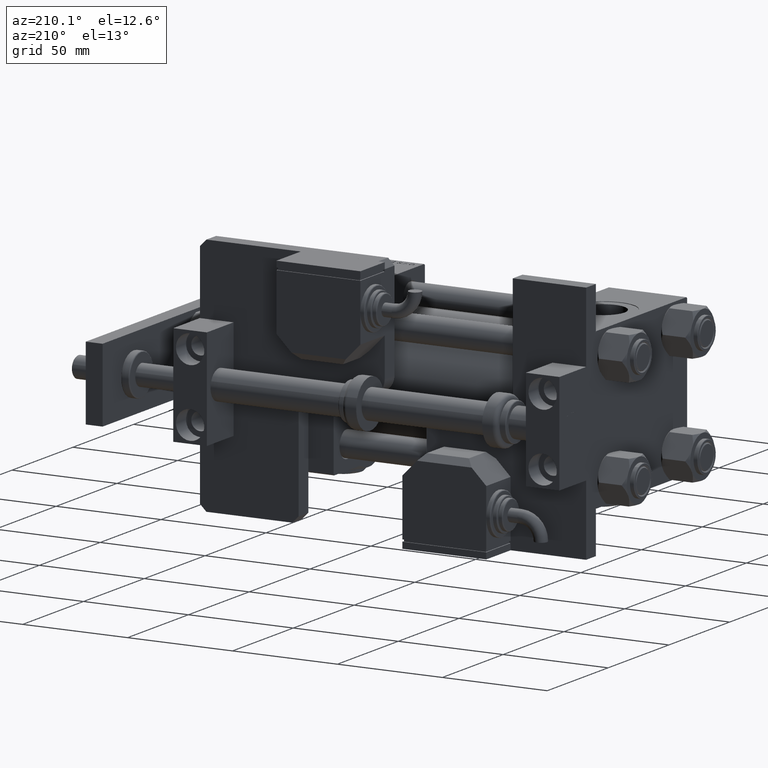
[diagram: clean part render]
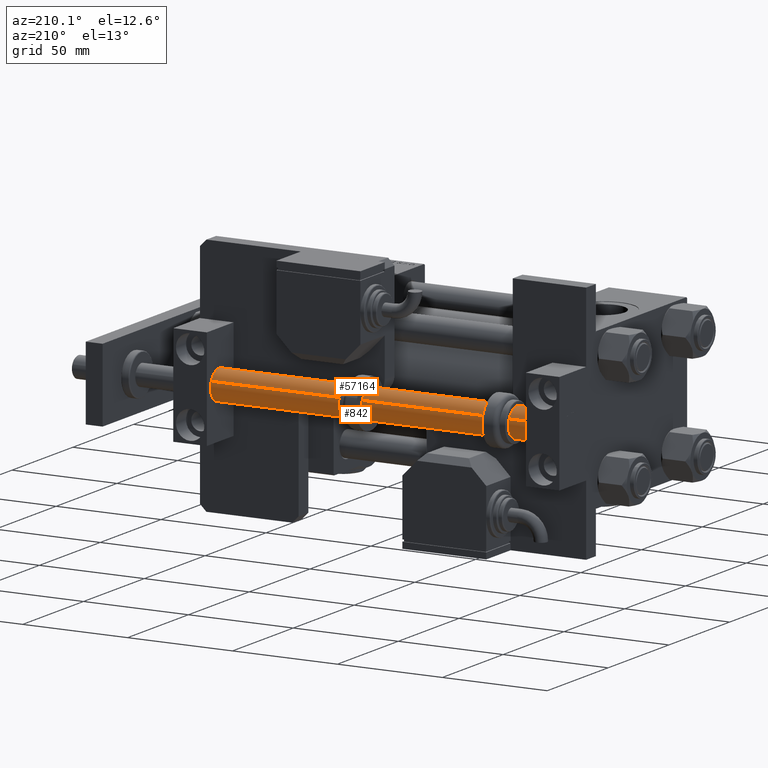
[diagram: same view with one multi-face feature highlighted, each face labeled with its STEP entity id]
A machine part, auxiliary view. The highlighted faces form ONE feature: a constant-radius fillet chain: 2 tangent blend faces with common blend radius 7 mm. The faces share edges in the B-rep.
Their STEP definitions:
[1] entity #57164 (Cylinder):
#938 = CARTESIAN_POINT ( 'NONE',  ( 0.000000000000000000, 0.000000000000000000, 184.0000000000000000 ) ) ;
#5582 = CIRCLE ( 'NONE', #23339, 7.000000000000000000 ) ;
#9578 = DIRECTION ( 'NONE',  ( -0.000000000000000000, -0.000000000000000000, 1.000000000000000000 ) ) ;
#10321 = CARTESIAN_POINT ( 'NONE',  ( -7.000000000000000000, 0.000000000000000000, 0.2999999999999392042 ) ) ;
#10739 = FACE_OUTER_BOUND ( 'NONE', #12941, .T. ) ;
#10918 = VERTEX_POINT ( 'NONE', #56005 ) ;
#11431 = CARTESIAN_POINT ( 'NONE',  ( -7.000000000000000000, 0.000000000000000000, 184.0000000000000000 ) ) ;
#12364 = ORIENTED_EDGE ( 'NONE', *, *, #29591, .F. ) ;
#12742 = ORIENTED_EDGE ( 'NONE', *, *, #40665, .F. ) ;
#12941 = EDGE_LOOP ( 'NONE', ( #12364, #12742, #22082, #34234 ) ) ;
#13673 = VERTEX_POINT ( 'NONE', #29426 ) ;
#18656 = CARTESIAN_POINT ( 'NONE',  ( 0.000000000000000000, 0.000000000000000000, 0.2999999999999392042 ) ) ;
#19238 = DIRECTION ( 'NONE',  ( 1.000000000000000000, 0.000000000000000000, 0.000000000000000000 ) ) ;
#19930 = LINE ( 'NONE', #11431, #57220 ) ;
#20694 = DIRECTION ( 'NONE',  ( -1.000000000000000000, 0.000000000000000000, 0.000000000000000000 ) ) ;
#21622 = AXIS2_PLACEMENT_3D ( 'NONE', #38872, #52626, #20694 ) ;
#22082 = ORIENTED_EDGE ( 'NONE', *, *, #29376, .T. ) ;
#23339 = AXIS2_PLACEMENT_3D ( 'NONE', #18656, #9578, #19238 ) ;
#24207 = CYLINDRICAL_SURFACE ( 'NONE', #21622, 7.000000000000000000 ) ;
#24473 = EDGE_CURVE ( 'NONE', #27055, #10918, #5582, .T. ) ;
#27055 = VERTEX_POINT ( 'NONE', #10321 ) ;
#27292 = DIRECTION ( 'NONE',  ( 1.000000000000000000, 0.000000000000000000, 0.000000000000000000 ) ) ;
#29376 = EDGE_CURVE ( 'NONE', #35163, #27055, #19930, .T. ) ;
#29426 = CARTESIAN_POINT ( 'NONE',  ( 7.000000000000000000, 8.572527594031473190E-16, 184.0000000000000000 ) ) ;
#29589 = DIRECTION ( 'NONE',  ( -0.000000000000000000, -0.000000000000000000, -1.000000000000000000 ) ) ;
#29591 = EDGE_CURVE ( 'NONE', #13673, #10918, #32445, .T. ) ;
#30457 = CIRCLE ( 'NONE', #51967, 7.000000000000000000 ) ;
#32445 = LINE ( 'NONE', #45666, #50555 ) ;
#34234 = ORIENTED_EDGE ( 'NONE', *, *, #24473, .T. ) ;
#35163 = VERTEX_POINT ( 'NONE', #47490 ) ;
#35235 = DIRECTION ( 'NONE',  ( 0.000000000000000000, 0.000000000000000000, 1.000000000000000000 ) ) ;
#38872 = CARTESIAN_POINT ( 'NONE',  ( 0.000000000000000000, 0.000000000000000000, 184.0000000000000000 ) ) ;
#40665 = EDGE_CURVE ( 'NONE', #35163, #13673, #30457, .T. ) ;
#45666 = CARTESIAN_POINT ( 'NONE',  ( 7.000000000000000000, 8.572527594031473190E-16, 184.0000000000000000 ) ) ;
#47490 = CARTESIAN_POINT ( 'NONE',  ( -7.000000000000000000, 0.000000000000000000, 184.0000000000000000 ) ) ;
#50555 = VECTOR ( 'NONE', #54450, 1000.000000000000000 ) ;
#51967 = AXIS2_PLACEMENT_3D ( 'NONE', #938, #35235, #27292 ) ;
#52626 = DIRECTION ( 'NONE',  ( -0.000000000000000000, -0.000000000000000000, -1.000000000000000000 ) ) ;
#54450 = DIRECTION ( 'NONE',  ( -0.000000000000000000, -0.000000000000000000, -1.000000000000000000 ) ) ;
#56005 = CARTESIAN_POINT ( 'NONE',  ( 7.000000000000000000, 8.572527594031473190E-16, 0.2999999999999392042 ) ) ;
#57164 = ADVANCED_FACE ( 'NONE', ( #10739 ), #24207, .T. ) ;
#57220 = VECTOR ( 'NONE', #29589, 1000.000000000000000 ) ;
[2] entity #842 (Cylinder):
#441 = FACE_OUTER_BOUND ( 'NONE', #33664, .T. ) ;
#842 = ADVANCED_FACE ( 'NONE', ( #441 ), #27087, .T. ) ;
#8135 = DIRECTION ( 'NONE',  ( -0.000000000000000000, -0.000000000000000000, 1.000000000000000000 ) ) ;
#8160 = AXIS2_PLACEMENT_3D ( 'NONE', #48302, #8135, #12826 ) ;
#8346 = DIRECTION ( 'NONE',  ( -0.000000000000000000, -0.000000000000000000, -1.000000000000000000 ) ) ;
#10035 = CIRCLE ( 'NONE', #8160, 7.000000000000000000 ) ;
#10321 = CARTESIAN_POINT ( 'NONE',  ( -7.000000000000000000, 0.000000000000000000, 0.2999999999999392042 ) ) ;
#10918 = VERTEX_POINT ( 'NONE', #56005 ) ;
#11431 = CARTESIAN_POINT ( 'NONE',  ( -7.000000000000000000, 0.000000000000000000, 184.0000000000000000 ) ) ;
#12826 = DIRECTION ( 'NONE',  ( 1.000000000000000000, 0.000000000000000000, 0.000000000000000000 ) ) ;
#13673 = VERTEX_POINT ( 'NONE', #29426 ) ;
#18138 = ORIENTED_EDGE ( 'NONE', *, *, #45371, .T. ) ;
#19930 = LINE ( 'NONE', #11431, #57220 ) ;
#20286 = ORIENTED_EDGE ( 'NONE', *, *, #29376, .F. ) ;
#24189 = EDGE_CURVE ( 'NONE', #13673, #35163, #35503, .T. ) ;
#27055 = VERTEX_POINT ( 'NONE', #10321 ) ;
#27087 = CYLINDRICAL_SURFACE ( 'NONE', #53936, 7.000000000000000000 ) ;
#28929 = AXIS2_PLACEMENT_3D ( 'NONE', #46067, #42560, #55727 ) ;
#29376 = EDGE_CURVE ( 'NONE', #35163, #27055, #19930, .T. ) ;
#29426 = CARTESIAN_POINT ( 'NONE',  ( 7.000000000000000000, 8.572527594031473190E-16, 184.0000000000000000 ) ) ;
#29526 = ORIENTED_EDGE ( 'NONE', *, *, #24189, .F. ) ;
#29589 = DIRECTION ( 'NONE',  ( -0.000000000000000000, -0.000000000000000000, -1.000000000000000000 ) ) ;
#29591 = EDGE_CURVE ( 'NONE', #13673, #10918, #32445, .T. ) ;
#32445 = LINE ( 'NONE', #45666, #50555 ) ;
#33664 = EDGE_LOOP ( 'NONE', ( #29526, #48879, #18138, #20286 ) ) ;
#35163 = VERTEX_POINT ( 'NONE', #47490 ) ;
#35503 = CIRCLE ( 'NONE', #28929, 7.000000000000000000 ) ;
#39735 = CARTESIAN_POINT ( 'NONE',  ( 0.000000000000000000, 0.000000000000000000, 184.0000000000000000 ) ) ;
#42560 = DIRECTION ( 'NONE',  ( 0.000000000000000000, 0.000000000000000000, 1.000000000000000000 ) ) ;
#44423 = DIRECTION ( 'NONE',  ( -1.000000000000000000, 0.000000000000000000, 0.000000000000000000 ) ) ;
#45371 = EDGE_CURVE ( 'NONE', #10918, #27055, #10035, .T. ) ;
#45666 = CARTESIAN_POINT ( 'NONE',  ( 7.000000000000000000, 8.572527594031473190E-16, 184.0000000000000000 ) ) ;
#46067 = CARTESIAN_POINT ( 'NONE',  ( 0.000000000000000000, 0.000000000000000000, 184.0000000000000000 ) ) ;
#47490 = CARTESIAN_POINT ( 'NONE',  ( -7.000000000000000000, 0.000000000000000000, 184.0000000000000000 ) ) ;
#48302 = CARTESIAN_POINT ( 'NONE',  ( 0.000000000000000000, 0.000000000000000000, 0.2999999999999392042 ) ) ;
#48879 = ORIENTED_EDGE ( 'NONE', *, *, #29591, .T. ) ;
#50555 = VECTOR ( 'NONE', #54450, 1000.000000000000000 ) ;
#53936 = AXIS2_PLACEMENT_3D ( 'NONE', #39735, #8346, #44423 ) ;
#54450 = DIRECTION ( 'NONE',  ( -0.000000000000000000, -0.000000000000000000, -1.000000000000000000 ) ) ;
#55727 = DIRECTION ( 'NONE',  ( 1.000000000000000000, 0.000000000000000000, 0.000000000000000000 ) ) ;
#56005 = CARTESIAN_POINT ( 'NONE',  ( 7.000000000000000000, 8.572527594031473190E-16, 0.2999999999999392042 ) ) ;
#57220 = VECTOR ( 'NONE', #29589, 1000.000000000000000 ) ;